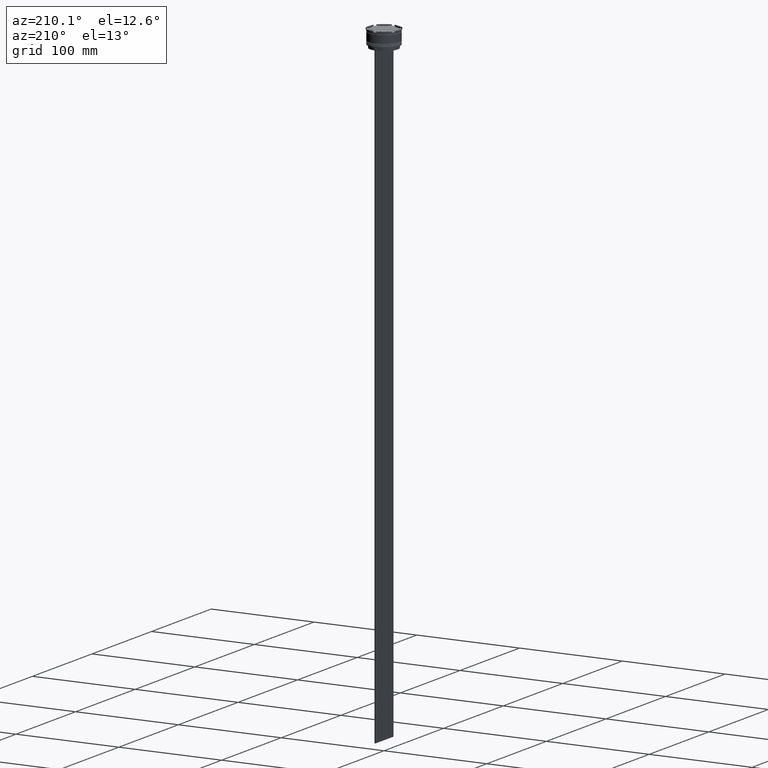
[diagram: clean part render]
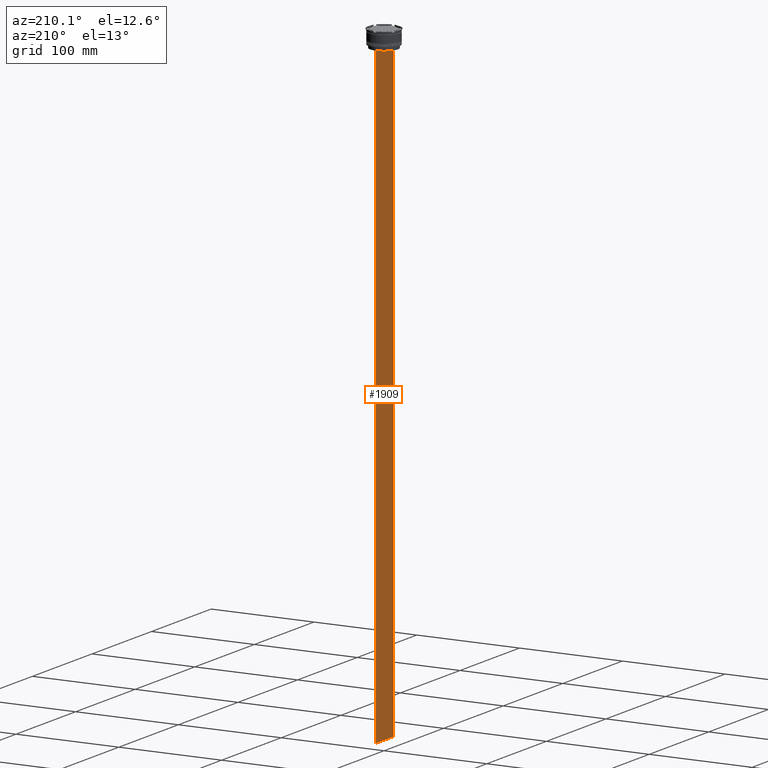
[diagram: same view with one face highlighted and labeled with its STEP entity id]
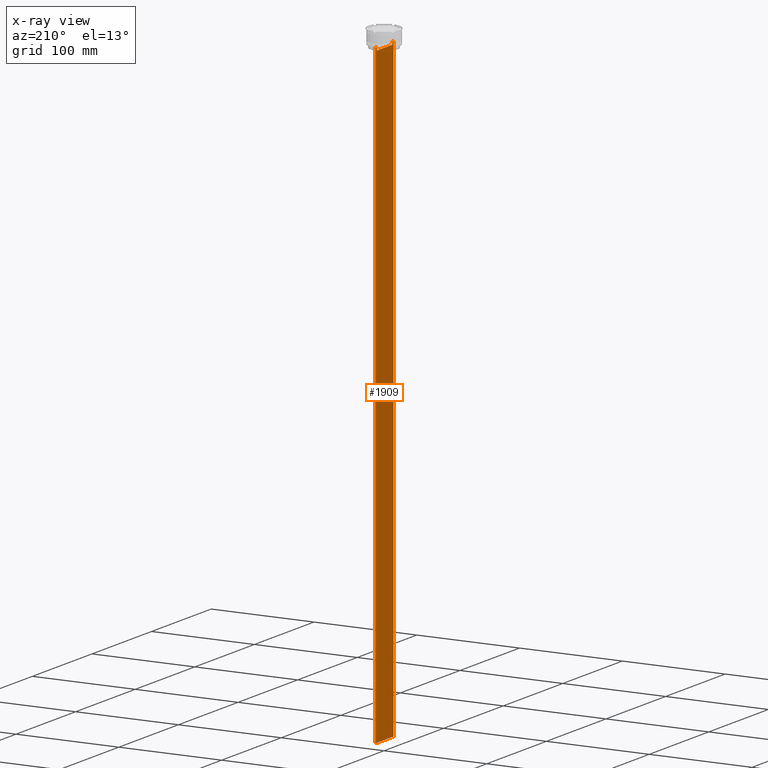
[diagram: x-ray of the same camera — body ghosted, the highlighted face saturated]
A machine part, auxiliary view. The second image highlights one B-rep face of the part: STEP entity #1909.
The next image is the same camera in x-ray: the body ghosted, the highlighted face saturated — about 0% of this face is hidden behind the body in this view.
In plain terms, the highlighted planar face has unit normal (-1, 0, 0).
Its self-contained STEP definition (entity closure, byte-faithful):
#16 = CARTESIAN_POINT ( 'NONE',  ( -0.4999999999999998890, -13.55744911241550277, -14.33333542435722485 ) ) ;
#69 = LINE ( 'NONE', #1833, #1155 ) ;
#78 = CARTESIAN_POINT ( 'NONE',  ( -0.4999999999999998890, 13.39066839257847263, -14.49999999999999822 ) ) ;
#124 = DIRECTION ( 'NONE',  ( 0.000000000000000000, 0.000000000000000000, 1.000000000000000000 ) ) ;
#162 = DIRECTION ( 'NONE',  ( 0.000000000000000000, -1.000000000000000000, 0.000000000000000000 ) ) ;
#174 = CARTESIAN_POINT ( 'NONE',  ( -0.4999999999999998890, -13.72422766745777345, -14.16666868242426958 ) ) ;
#190 = VERTEX_POINT ( 'NONE', #1128 ) ;
#280 = VECTOR ( 'NONE', #2401, 1000.000000000000000 ) ;
#319 = CARTESIAN_POINT ( 'NONE',  ( -0.4999999999999998890, 13.39066839257847263, -14.49999999999999822 ) ) ;
#321 = CARTESIAN_POINT ( 'NONE',  ( -0.4999999999999998890, 13.40000000000000391, -17.00000000000000000 ) ) ;
#344 = DIRECTION ( 'NONE',  ( 0.000000000000000000, 0.000000000000000000, -1.000000000000000000 ) ) ;
#351 = CARTESIAN_POINT ( 'NONE',  ( -0.4999999999999998890, -15.00000000000000355, -14.00000000000000178 ) ) ;
#363 = CARTESIAN_POINT ( 'NONE',  ( -0.4999999999999998890, -15.00000000000000355, 16.01666203960726165 ) ) ;
#436 = ORIENTED_EDGE ( 'NONE', *, *, #1017, .F. ) ;
#474 = VERTEX_POINT ( 'NONE', #2581 ) ;
#483 = VERTEX_POINT ( 'NONE', #807 ) ;
#546 = LINE ( 'NONE', #321, #2275 ) ;
#601 = VERTEX_POINT ( 'NONE', #863 ) ;
#648 = ORIENTED_EDGE ( 'NONE', *, *, #2102, .F. ) ;
#658 = VECTOR ( 'NONE', #2864, 1000.000000000000000 ) ;
#675 = VERTEX_POINT ( 'NONE', #2045 ) ;
#805 = CARTESIAN_POINT ( 'NONE',  ( -0.4999999999999998890, -15.00000000000000355, -614.0000000000000000 ) ) ;
#807 = CARTESIAN_POINT ( 'NONE',  ( -0.4999999999999998890, 14.99999999999999645, -14.00000000000000178 ) ) ;
#817 = LINE ( 'NONE', #1727, #280 ) ;
#834 = CARTESIAN_POINT ( 'NONE',  ( -0.4999999999999998890, -15.00000000000000355, -14.00000000000000178 ) ) ;
#850 = CARTESIAN_POINT ( 'NONE',  ( -0.4999999999999998890, -13.89100428334828230, -14.00000000000000178 ) ) ;
#853 = CARTESIAN_POINT ( 'NONE',  ( -0.4999999999999998890, -13.39066839257847263, 0.000000000000000000 ) ) ;
#863 = CARTESIAN_POINT ( 'NONE',  ( -0.4999999999999998890, -13.89100428334828230, -14.00000000000000178 ) ) ;
#947 = ORIENTED_EDGE ( 'NONE', *, *, #1859, .F. ) ;
#957 = VERTEX_POINT ( 'NONE', #2075 ) ;
#974 = EDGE_CURVE ( 'NONE', #474, #2704, #1105, .T. ) ;
#1004 = VERTEX_POINT ( 'NONE', #1210 ) ;
#1006 = ORIENTED_EDGE ( 'NONE', *, *, #1124, .F. ) ;
#1007 = DIRECTION ( 'NONE',  ( 0.000000000000000000, 1.000000000000000000, 0.000000000000000000 ) ) ;
#1016 = CARTESIAN_POINT ( 'NONE',  ( -0.4999999999999998890, -15.00000000000000355, -614.0000000000000000 ) ) ;
#1017 = EDGE_CURVE ( 'NONE', #190, #957, #546, .T. ) ;
#1019 = VECTOR ( 'NONE', #344, 1000.000000000000000 ) ;
#1038 = CARTESIAN_POINT ( 'NONE',  ( -0.4999999999999998890, 14.89160837518903513, -14.00000000000000178 ) ) ;
#1082 = EDGE_CURVE ( 'NONE', #2368, #474, #2133, .T. ) ;
#1105 = B_SPLINE_CURVE_WITH_KNOTS ( 'NONE', 3,
 ( #1168, #1795, #2064, #78 ),
 .UNSPECIFIED., .F., .F.,
 ( 4, 4 ),
 ( 0.02359665025569773755, 0.02430399458637444096 ),
 .UNSPECIFIED. ) ;
#1119 = ORIENTED_EDGE ( 'NONE', *, *, #974, .F. ) ;
#1124 = EDGE_CURVE ( 'NONE', #1477, #2307, #2819, .T. ) ;
#1128 = CARTESIAN_POINT ( 'NONE',  ( -0.4999999999999998890, 13.39066839257847086, -17.00000000000000000 ) ) ;
#1155 = VECTOR ( 'NONE', #2291, 1000.000000000000000 ) ;
#1168 = CARTESIAN_POINT ( 'NONE',  ( -0.4999999999999998890, 13.89100428334828230, -14.00000000000000178 ) ) ;
#1174 = EDGE_CURVE ( 'NONE', #601, #1004, #817, .T. ) ;
#1177 = EDGE_CURVE ( 'NONE', #1004, #675, #2831, .T. ) ;
#1182 = ORIENTED_EDGE ( 'NONE', *, *, #1174, .F. ) ;
#1210 = CARTESIAN_POINT ( 'NONE',  ( -0.4999999999999998890, -14.89160837518903513, -14.00000000000000178 ) ) ;
#1211 = CARTESIAN_POINT ( 'NONE',  ( -0.4999999999999998890, 14.99999999999999645, -614.0000000000000000 ) ) ;
#1237 = VECTOR ( 'NONE', #1007, 1000.000000000000000 ) ;
#1240 = ORIENTED_EDGE ( 'NONE', *, *, #1082, .F. ) ;
#1291 = AXIS2_PLACEMENT_3D ( 'NONE', #363, #2790, #124 ) ;
#1333 = VECTOR ( 'NONE', #1711, 1000.000000000000000 ) ;
#1432 = VECTOR ( 'NONE', #162, 1000.000000000000000 ) ;
#1440 = ORIENTED_EDGE ( 'NONE', *, *, #2413, .F. ) ;
#1451 = CARTESIAN_POINT ( 'NONE',  ( -0.4999999999999998890, 14.99999999999999645, 16.01666203960726165 ) ) ;
#1477 = VERTEX_POINT ( 'NONE', #1016 ) ;
#1495 = ORIENTED_EDGE ( 'NONE', *, *, #2784, .F. ) ;
#1545 = ORIENTED_EDGE ( 'NONE', *, *, #2533, .F. ) ;
#1588 = B_SPLINE_CURVE_WITH_KNOTS ( 'NONE', 3,
 ( #2197, #16, #174, #850 ),
 .UNSPECIFIED., .F., .F.,
 ( 4, 4 ),
 ( 0.06160226316123729867, 0.06231007364084071437 ),
 .UNSPECIFIED. ) ;
#1591 = ORIENTED_EDGE ( 'NONE', *, *, #1888, .T. ) ;
#1620 = CARTESIAN_POINT ( 'NONE',  ( -0.4999999999999998890, -15.00000000000000355, -14.00000000000000178 ) ) ;
#1711 = DIRECTION ( 'NONE',  ( 0.000000000000000000, -1.000000000000000000, 0.000000000000000000 ) ) ;
#1727 = CARTESIAN_POINT ( 'NONE',  ( -0.4999999999999998890, -15.00000000000000355, -14.00000000000000178 ) ) ;
#1780 = LINE ( 'NONE', #2638, #658 ) ;
#1795 = CARTESIAN_POINT ( 'NONE',  ( -0.4999999999999998890, 13.72422766736833566, -14.16666868251365052 ) ) ;
#1833 = CARTESIAN_POINT ( 'NONE',  ( -0.4999999999999998890, 13.39066839257847263, 0.000000000000000000 ) ) ;
#1838 = LINE ( 'NONE', #1620, #2055 ) ;
#1846 = VERTEX_POINT ( 'NONE', #2054 ) ;
#1859 = EDGE_CURVE ( 'NONE', #2704, #190, #69, .T. ) ;
#1880 = DIRECTION ( 'NONE',  ( 0.000000000000000000, -1.000000000000000000, 0.000000000000000000 ) ) ;
#1888 = EDGE_CURVE ( 'NONE', #483, #2307, #2122, .T. ) ;
#1909 = ADVANCED_FACE ( 'NONE', ( #2138 ), #2392, .T. ) ;
#2045 = CARTESIAN_POINT ( 'NONE',  ( -0.4999999999999998890, -15.00000000000000355, -14.00000000000000178 ) ) ;
#2054 = CARTESIAN_POINT ( 'NONE',  ( -0.4999999999999998890, -13.39066839257847263, -14.49999999999999822 ) ) ;
#2055 = VECTOR ( 'NONE', #2083, 1000.000000000000000 ) ;
#2064 = CARTESIAN_POINT ( 'NONE',  ( -0.4999999999999998890, 13.55744911232272543, -14.33333542444994002 ) ) ;
#2075 = CARTESIAN_POINT ( 'NONE',  ( -0.4999999999999998890, -13.39066839257847086, -17.00000000000000000 ) ) ;
#2083 = DIRECTION ( 'NONE',  ( 0.000000000000000000, -1.000000000000000000, 0.000000000000000000 ) ) ;
#2102 = EDGE_CURVE ( 'NONE', #957, #1846, #2866, .T. ) ;
#2122 = LINE ( 'NONE', #1451, #1019 ) ;
#2133 = LINE ( 'NONE', #351, #1432 ) ;
#2138 = FACE_OUTER_BOUND ( 'NONE', #2587, .T. ) ;
#2197 = CARTESIAN_POINT ( 'NONE',  ( -0.4999999999999998890, -13.39066839257847263, -14.49999999999999822 ) ) ;
#2275 = VECTOR ( 'NONE', #1880, 1000.000000000000000 ) ;
#2291 = DIRECTION ( 'NONE',  ( 0.000000000000000000, 0.000000000000000000, -1.000000000000000000 ) ) ;
#2307 = VERTEX_POINT ( 'NONE', #1211 ) ;
#2368 = VERTEX_POINT ( 'NONE', #1038 ) ;
#2392 = PLANE ( 'NONE',  #1291 ) ;
#2401 = DIRECTION ( 'NONE',  ( 0.000000000000000000, -1.000000000000000000, 0.000000000000000000 ) ) ;
#2413 = EDGE_CURVE ( 'NONE', #1846, #601, #1588, .T. ) ;
#2431 = VECTOR ( 'NONE', #2672, 1000.000000000000000 ) ;
#2533 = EDGE_CURVE ( 'NONE', #675, #1477, #1780, .T. ) ;
#2581 = CARTESIAN_POINT ( 'NONE',  ( -0.4999999999999998890, 13.89100428334828230, -14.00000000000000178 ) ) ;
#2587 = EDGE_LOOP ( 'NONE', ( #1119, #1240, #1495, #1591, #1006, #1545, #2707, #1182, #1440, #648, #436, #947 ) ) ;
#2638 = CARTESIAN_POINT ( 'NONE',  ( -0.4999999999999998890, -15.00000000000000355, 16.01666203960726165 ) ) ;
#2672 = DIRECTION ( 'NONE',  ( -0.000000000000000000, -0.000000000000000000, 1.000000000000000000 ) ) ;
#2704 = VERTEX_POINT ( 'NONE', #319 ) ;
#2707 = ORIENTED_EDGE ( 'NONE', *, *, #1177, .F. ) ;
#2784 = EDGE_CURVE ( 'NONE', #483, #2368, #1838, .T. ) ;
#2790 = DIRECTION ( 'NONE',  ( -1.000000000000000000, 0.000000000000000000, 0.000000000000000000 ) ) ;
#2819 = LINE ( 'NONE', #805, #1237 ) ;
#2831 = LINE ( 'NONE', #834, #1333 ) ;
#2864 = DIRECTION ( 'NONE',  ( 0.000000000000000000, 0.000000000000000000, -1.000000000000000000 ) ) ;
#2866 = LINE ( 'NONE', #853, #2431 ) ;